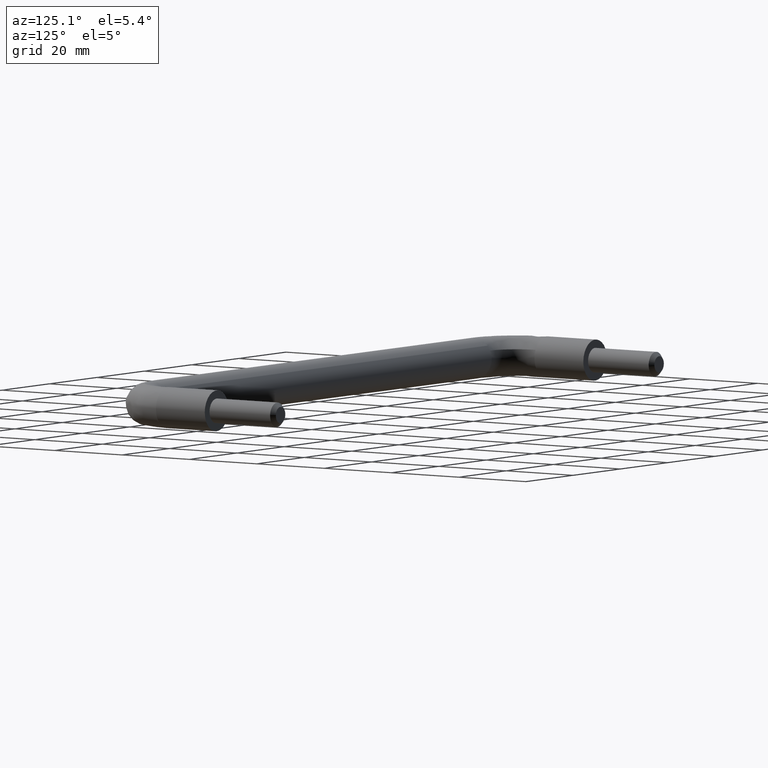
[diagram: clean part render]
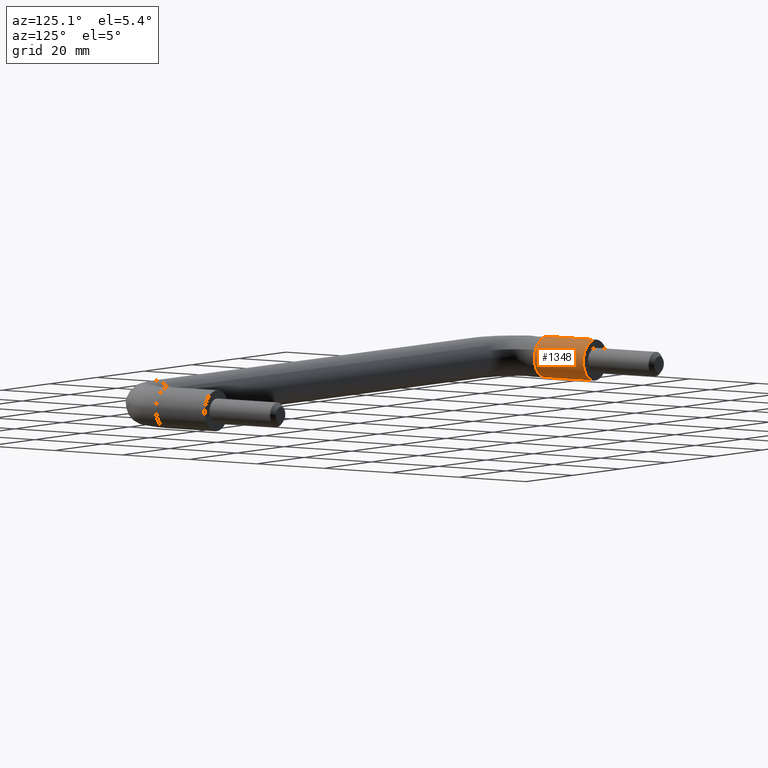
[diagram: same view with one face highlighted and labeled with its STEP entity id]
A machine part, auxiliary view. The second image highlights one B-rep face of the part: STEP entity #1348.
In plain terms, the highlighted face is a freeform B-spline surface patch.
Its self-contained STEP definition (entity closure, byte-faithful):
#1178=CARTESIAN_POINT('',(-3.704541040031022,0.362500000036337,3.358031519019121));
#1179=CARTESIAN_POINT('',(-5.295144837890152,0.362500000036336,1.603296039550026));
#1180=CARTESIAN_POINT('',(-4.945079316809583,0.362500000036336,-0.739047055648054));
#1181=CARTESIAN_POINT('',(-4.206032261161528,0.362500000036337,-5.684126372457635));
#1182=CARTESIAN_POINT('',(0.739047055648054,0.362500000036337,-4.945079316809583));
#1183=CARTESIAN_POINT('',(5.684126372457635,0.362500000036338,-4.206032261161528));
#1184=CARTESIAN_POINT('',(4.945079316809583,0.362500000036338,0.739047055648054));
#1185=CARTESIAN_POINT('',(4.206032261161528,0.362500000036337,5.684126372457635));
#1186=CARTESIAN_POINT('',(-0.739047055648054,0.362500000036337,4.945079316809583));
#1187=CARTESIAN_POINT('',(-3.704541040031020,-14.871562501490683,3.358031519019121));
#1188=CARTESIAN_POINT('',(-5.295144837890149,-14.871562501490684,1.603296039550026));
#1189=CARTESIAN_POINT('',(-4.945079316809581,-14.871562501490690,-0.739047055648054));
#1190=CARTESIAN_POINT('',(-4.206032261161528,-14.871562501490684,-5.684126372457635));
#1191=CARTESIAN_POINT('',(0.739047055648056,-14.871562501490690,-4.945079316809583));
#1192=CARTESIAN_POINT('',(5.684126372457638,-14.871562501490684,-4.206032261161528));
#1193=CARTESIAN_POINT('',(4.945079316809585,-14.871562501490690,0.739047055648054));
#1194=CARTESIAN_POINT('',(4.206032261161532,-14.871562501490684,5.684126372457635));
#1195=CARTESIAN_POINT('',(-0.739047055648052,-14.871562501490690,4.945079316809583));
#1203=(BOUNDED_SURFACE()B_SPLINE_SURFACE(2,1,((#1178,#1187),(#1179,#1188),(#1180,#1189),(#1181,#1190),(#1182,#1191),(#1183,#1192),(#1184,#1193),(#1185,#1194),(#1186,#1195)),.UNSPECIFIED.,.F.,.F.,.U.)B_SPLINE_SURFACE_WITH_KNOTS((3,2,2,2,3),(2,2),(0.0,4.639191898578663,12.923463146040559,21.207734393502459,29.492005640964361),(0.0,15.234062501527021),.UNSPECIFIED.)GEOMETRIC_REPRESENTATION_ITEM()RATIONAL_B_SPLINE_SURFACE(((0.855662221768731,0.855662221768731),(0.835979797464467,0.835979797464467),(1.0,1.0),(0.707106781186548,0.707106781186548),(1.0,1.0),(0.707106781186548,0.707106781186548),(1.0,1.0),(0.707106781186548,0.707106781186548),(1.0,1.0)))REPRESENTATION_ITEM('')SURFACE());
#1204=CARTESIAN_POINT('',(-3.704543296746591,-14.499999999999821,3.358029029433574));
#1205=VERTEX_POINT('',#1204);
#1206=CARTESIAN_POINT('',(-4.999999999999998,-14.500000000000000,0.0));
#1207=VERTEX_POINT('',#1206);
#1208=CARTESIAN_POINT('',(-3.704543296746590,-14.499999999999815,3.358029029433574));
#1209=CARTESIAN_POINT('',(-4.999999999999997,-14.499999999999996,1.928894437626099));
#1210=CARTESIAN_POINT('',(-4.999999999999998,-14.500000000000000,0.0));
#1218=(BOUNDED_CURVE()B_SPLINE_CURVE(2,(#1208,#1209,#1210),.UNSPECIFIED.,.F.,.U.)B_SPLINE_CURVE_WITH_KNOTS((3,3),(0.882398655225513,1.0),.UNSPECIFIED.)CURVE()GEOMETRIC_REPRESENTATION_ITEM()RATIONAL_B_SPLINE_CURVE((0.854066446716059,0.862221454368840,1.0))REPRESENTATION_ITEM(''));
#1219=EDGE_CURVE('',#1205,#1207,#1218,.T.);
#1220=ORIENTED_EDGE('',*,*,#1219,.F.);
#1221=CARTESIAN_POINT('',(-3.704543268906057,-2.595003E-016,3.358029060147010));
#1222=VERTEX_POINT('',#1221);
#1223=CARTESIAN_POINT('',(-3.704543268906057,-2.595003E-016,3.358029060147010));
#1224=CARTESIAN_POINT('',(-3.704543296746591,-14.499999999999821,3.358029029433574));
#1225=QUASI_UNIFORM_CURVE('',1,(#1223,#1224),.UNSPECIFIED.,.F.,.U.);
#1226=EDGE_CURVE('',#1222,#1205,#1225,.T.);
#1227=ORIENTED_EDGE('',*,*,#1226,.F.);
#1228=CARTESIAN_POINT('',(-5.0,0.0,0.0));
#1229=VERTEX_POINT('',#1228);
#1230=CARTESIAN_POINT('',(-3.704543268906057,-2.595003E-016,3.358029060147009));
#1231=CARTESIAN_POINT('',(-5.0,0.0,1.928894461437639));
#1232=CARTESIAN_POINT('',(-5.0,0.0,0.0));
#1240=(BOUNDED_CURVE()B_SPLINE_CURVE(2,(#1230,#1231,#1232),.UNSPECIFIED.,.F.,.U.)B_SPLINE_CURVE_WITH_KNOTS((3,3),(0.882398653973784,1.0),.UNSPECIFIED.)CURVE()GEOMETRIC_REPRESENTATION_ITEM()RATIONAL_B_SPLINE_CURVE((0.854066446542458,0.862221452902348,1.0))REPRESENTATION_ITEM(''));
#1241=EDGE_CURVE('',#1222,#1229,#1240,.T.);
#1242=ORIENTED_EDGE('',*,*,#1241,.T.);
#1243=CARTESIAN_POINT('',(5.0,0.0,0.0));
#1244=VERTEX_POINT('',#1243);
#1245=CARTESIAN_POINT('',(-5.0,0.0,0.0));
#1246=CARTESIAN_POINT('',(-5.000000000000001,0.0,-5.000000000000001));
#1247=CARTESIAN_POINT('',(0.0,0.0,-5.0));
#1248=CARTESIAN_POINT('',(5.000000000000001,0.0,-5.000000000000001));
#1249=CARTESIAN_POINT('',(5.0,0.0,0.0));
#1257=(BOUNDED_CURVE()B_SPLINE_CURVE(2,(#1245,#1246,#1247,#1248,#1249),.UNSPECIFIED.,.F.,.U.)B_SPLINE_CURVE_WITH_KNOTS((3,2,3),(0.0,0.250000000000000,0.500000000000000),.UNSPECIFIED.)CURVE()GEOMETRIC_REPRESENTATION_ITEM()RATIONAL_B_SPLINE_CURVE((1.0,0.707106781186548,1.0,0.707106781186548,1.0))REPRESENTATION_ITEM(''));
#1258=EDGE_CURVE('',#1229,#1244,#1257,.T.);
#1259=ORIENTED_EDGE('',*,*,#1258,.T.);
#1260=CARTESIAN_POINT('',(-0.739047055678354,-1.110223E-016,4.945079316805055));
#1261=VERTEX_POINT('',#1260);
#1262=CARTESIAN_POINT('',(5.0,0.0,0.0));
#1263=CARTESIAN_POINT('',(5.000000000000001,0.0,5.000000000000001));
#1264=CARTESIAN_POINT('',(0.0,0.0,5.0));
#1265=CARTESIAN_POINT('',(-0.371564183736669,0.0,5.000000000000001));
#1266=CARTESIAN_POINT('',(-0.739047055678354,-1.110223E-016,4.945079316805055));
#1274=(BOUNDED_CURVE()B_SPLINE_CURVE(2,(#1262,#1263,#1264,#1265,#1266),.UNSPECIFIED.,.F.,.U.)B_SPLINE_CURVE_WITH_KNOTS((3,2,3),(0.500000000000000,0.750000000000000,0.775488969613789),.UNSPECIFIED.)CURVE()GEOMETRIC_REPRESENTATION_ITEM()RATIONAL_B_SPLINE_CURVE((1.0,0.707106781186548,1.0,0.970137814582317,0.946364879858335))REPRESENTATION_ITEM(''));
#1275=EDGE_CURVE('',#1244,#1261,#1274,.T.);
#1276=ORIENTED_EDGE('',*,*,#1275,.T.);
#1277=CARTESIAN_POINT('',(-0.739047056177648,-14.500000000000000,4.945079316730435));
#1278=VERTEX_POINT('',#1277);
#1279=CARTESIAN_POINT('',(-0.739047055678354,-1.110223E-016,4.945079316805055));
#1280=CARTESIAN_POINT('',(-0.739047056177648,-14.500000000000000,4.945079316730435));
#1281=QUASI_UNIFORM_CURVE('',1,(#1279,#1280),.UNSPECIFIED.,.F.,.U.);
#1282=EDGE_CURVE('',#1261,#1278,#1281,.T.);
#1283=ORIENTED_EDGE('',*,*,#1282,.T.);
#1284=CARTESIAN_POINT('',(4.550529853313581,-14.500000000180171,2.071877905211090));
#1285=VERTEX_POINT('',#1284);
#1286=CARTESIAN_POINT('',(4.550529853313582,-14.500000000180163,2.071877905211089));
#1287=CARTESIAN_POINT('',(3.217341923912158,-14.499999999999998,5.0));
#1288=CARTESIAN_POINT('',(1.776357E-015,-14.500000000000000,5.0));
#1289=CARTESIAN_POINT('',(-0.371564184244269,-14.500000000000005,5.0));
#1290=CARTESIAN_POINT('',(-0.739047056177648,-14.499999999999998,4.945079316730436));
#1298=(BOUNDED_CURVE()B_SPLINE_CURVE(2,(#1286,#1287,#1288,#1289,#1290),.UNSPECIFIED.,.F.,.U.)B_SPLINE_CURVE_WITH_KNOTS((3,2,3),(0.570375489974829,0.750000000000000,0.775488969647570),.UNSPECIFIED.)CURVE()GEOMETRIC_REPRESENTATION_ITEM()RATIONAL_B_SPLINE_CURVE((0.881519651435291,0.789556796323754,1.0,0.970137814542740,0.946364879795321))REPRESENTATION_ITEM(''));
#1299=EDGE_CURVE('',#1285,#1278,#1298,.T.);
#1300=ORIENTED_EDGE('',*,*,#1299,.F.);
#1301=CARTESIAN_POINT('',(5.000000000000002,-14.500000000000000,0.0));
#1302=VERTEX_POINT('',#1301);
#1303=CARTESIAN_POINT('',(5.000000000000002,-14.500000000000000,0.0));
#1304=CARTESIAN_POINT('',(5.000000000000003,-14.500000000000004,1.084692649152395));
#1305=CARTESIAN_POINT('',(4.550529853313581,-14.500000000180165,2.071877905211090));
#1313=(BOUNDED_CURVE()B_SPLINE_CURVE(2,(#1303,#1304,#1305),.UNSPECIFIED.,.F.,.U.)B_SPLINE_CURVE_WITH_KNOTS((3,3),(0.500000000000000,0.570375489974830),.UNSPECIFIED.)CURVE()GEOMETRIC_REPRESENTATION_ITEM()RATIONAL_B_SPLINE_CURVE((1.0,0.917549984862793,0.881519651435290))REPRESENTATION_ITEM(''));
#1314=EDGE_CURVE('',#1302,#1285,#1313,.T.);
#1315=ORIENTED_EDGE('',*,*,#1314,.F.);
#1316=CARTESIAN_POINT('',(1.808231368748996,-14.500000001453440,-4.661576913134882));
#1317=VERTEX_POINT('',#1316);
#1318=CARTESIAN_POINT('',(1.808231368748997,-14.500000001453447,-4.661576913134882));
#1319=CARTESIAN_POINT('',(5.0,-14.500000000000000,-3.423485967838657));
#1320=CARTESIAN_POINT('',(5.000000000000002,-14.500000000000000,0.0));
#1328=(BOUNDED_CURVE()B_SPLINE_CURVE(2,(#1318,#1319,#1320),.UNSPECIFIED.,.F.,.U.)B_SPLINE_CURVE_WITH_KNOTS((3,3),(0.311409344403013,0.500000000000000),.UNSPECIFIED.)CURVE()GEOMETRIC_REPRESENTATION_ITEM()RATIONAL_B_SPLINE_CURVE((0.891453974423832,0.779052303376237,1.0))REPRESENTATION_ITEM(''));
#1329=EDGE_CURVE('',#1317,#1302,#1328,.T.);
#1330=ORIENTED_EDGE('',*,*,#1329,.F.);
#1331=CARTESIAN_POINT('',(-4.999999999999998,-14.500000000000000,0.0));
#1332=CARTESIAN_POINT('',(-4.999999999999997,-14.500000000000000,-5.000000000000001));
#1333=CARTESIAN_POINT('',(1.776357E-015,-14.500000000000000,-5.0));
#1334=CARTESIAN_POINT('',(0.935784803453443,-14.500000000000000,-5.0));
#1335=CARTESIAN_POINT('',(1.808231368748997,-14.500000001453447,-4.661576913134882));
#1343=(BOUNDED_CURVE()B_SPLINE_CURVE(2,(#1331,#1332,#1333,#1334,#1335),.UNSPECIFIED.,.F.,.U.)B_SPLINE_CURVE_WITH_KNOTS((3,2,3),(0.0,0.250000000000000,0.311409344403013),.UNSPECIFIED.)CURVE()GEOMETRIC_REPRESENTATION_ITEM()RATIONAL_B_SPLINE_CURVE((1.0,0.707106781186548,1.0,0.928054477810311,0.891453974423832))REPRESENTATION_ITEM(''));
#1344=EDGE_CURVE('',#1207,#1317,#1343,.T.);
#1345=ORIENTED_EDGE('',*,*,#1344,.F.);
#1346=EDGE_LOOP('',(#1220,#1227,#1242,#1259,#1276,#1283,#1300,#1315,#1330,#1345));
#1347=FACE_OUTER_BOUND('',#1346,.T.);
#1348=ADVANCED_FACE('',(#1347),#1203,.T.);